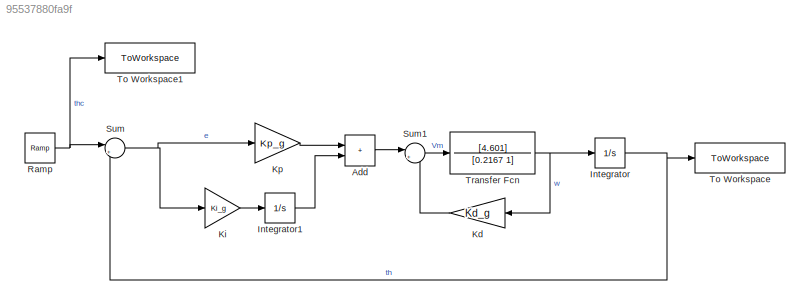
MODEL slx_95537880fa9f
KIND model
CONFIG AbsTol = auto
CONFIG EnableMultiTasking = off
CONFIG FixedStep = 0.01
CONFIG MaxStep = auto
CONFIG MinStep = auto
CONFIG RelTol = 1e-3
CONFIG SampleTimeConstraint = Unconstrained
CONFIG SolverName = FixedStepAuto
CONFIG StartTime = 0.0
CONFIG StopTime = 30
BLOCK [Sum] Add
  IconShape = rectangular
  Ports = [2, 1]
BLOCK [Integrator] Integrator
  Ports = [1, 1]
BLOCK [Integrator] Integrator1
  Ports = [1, 1]
BLOCK [Gain] Kd
  Gain = Kd_g
BLOCK [Gain] Ki
  Gain = Ki_g
BLOCK [Gain] Kp
  Gain = Kp_g
BLOCK [Reference] Ramp  REF=simulink/Sources/Ramp
  Ports = [0, 1]
  SourceBlock = simulink/Sources/Ramp
  SourceProductBaseCode = SL
  SourceType = Ramp
BLOCK [Sum] Sum
  Inputs = |+-
  Ports = [2, 1]
BLOCK [Sum] Sum1
  Inputs = |+-
  Ports = [2, 1]
BLOCK [ToWorkspace] To Workspace
  FixptAsFi = on
  MaxDataPoints = inf
  Ports = [1]
  SampleTime = -1
  VariableName = simout
BLOCK [ToWorkspace] To Workspace1
  FixptAsFi = on
  MaxDataPoints = inf
  Ports = [1]
  SampleTime = -1
  VariableName = input_arr
BLOCK [TransferFcn] Transfer Fcn
  Denominator = [0.2167 1]
  Numerator = [4.601]
LINE Add:1 -> Sum1:1
LINE Integrator1:1 -> Add:2
NET Integrator:1 -> Sum:2, To Workspace:1
LINE Kd:1 -> Sum1:2
LINE Ki:1 -> Integrator1:1
LINE Kp:1 -> Add:1
NET Ramp:1 -> Sum:1, To Workspace1:1
LINE Sum1:1 -> Transfer Fcn:1
NET Sum:1 -> Ki:1, Kp:1
NET Transfer Fcn:1 -> Integrator:1, Kd:1
note: NET lines group one-source signal fan-out (src -> all destinations, sorted); 1:1 wires keep LINE
